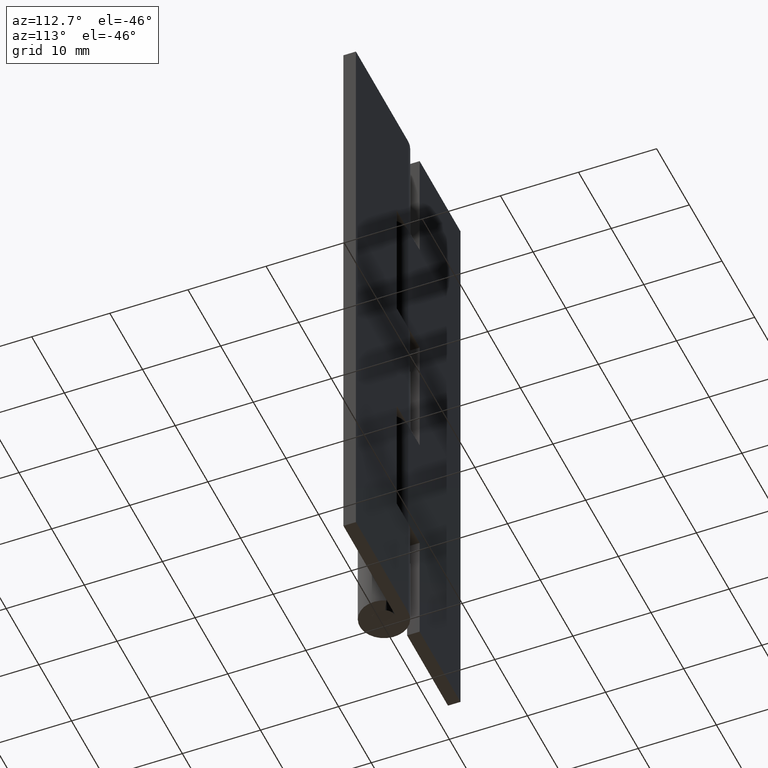
[diagram: clean part render]
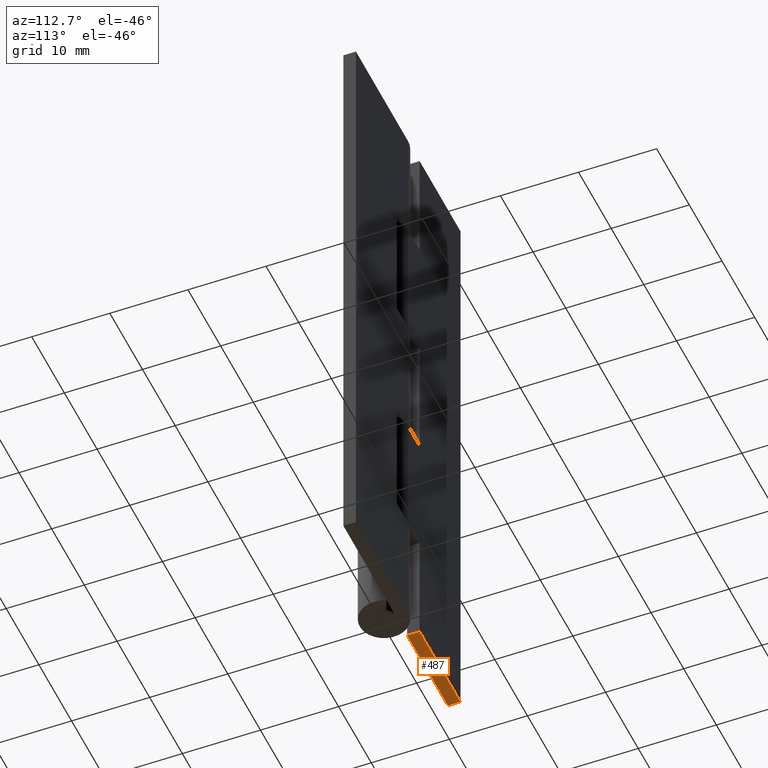
[diagram: same view with one face highlighted and labeled with its STEP entity id]
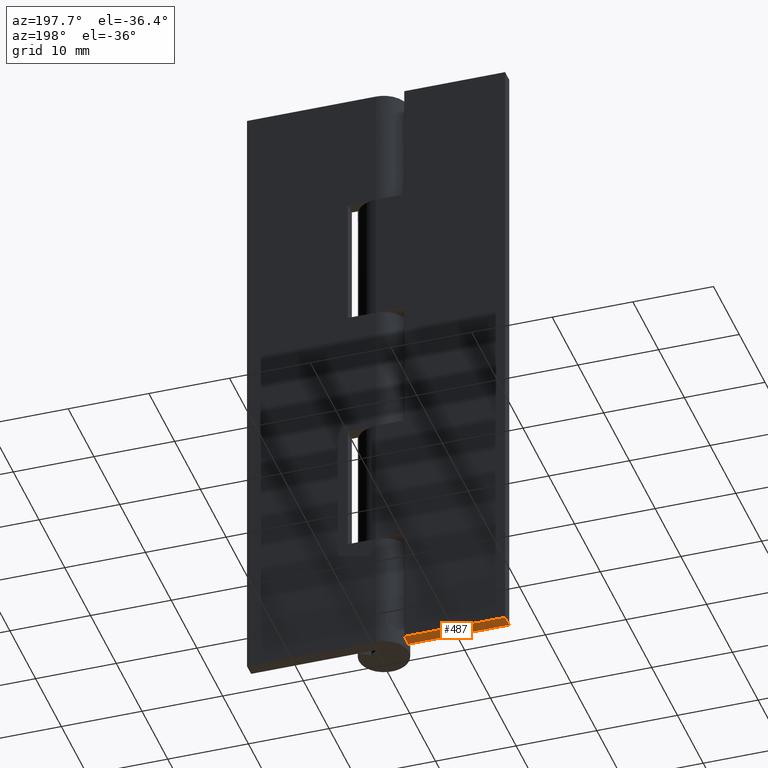
[diagram: same view with one face highlighted and labeled with its STEP entity id]
A machine part, auxiliary view. The second image highlights one B-rep face of the part: STEP entity #487.
A second angle (auxiliary view) of the same face is appended — the face is thin or edge-on in the first view.
In plain terms, the highlighted face is a freeform B-spline surface patch.
Its self-contained STEP definition (entity closure, byte-faithful):
#225=CARTESIAN_POINT('',(-3.500000000000100,1.500000000000000,0.0));
#226=VERTEX_POINT('',#225);
#227=CARTESIAN_POINT('',(-3.500000000000100,3.099998000000050,0.0));
#228=VERTEX_POINT('',#227);
#229=CARTESIAN_POINT('',(-3.500000000000100,1.500000000000000,0.0));
#230=CARTESIAN_POINT('',(-3.500000000000100,3.099998000000050,0.0));
#231=QUASI_UNIFORM_CURVE('',1,(#229,#230),.UNSPECIFIED.,.F.,.U.);
#232=EDGE_CURVE('',#226,#228,#231,.T.);
#460=CARTESIAN_POINT('',(-16.624374975772572,1.420080103001104,0.0));
#461=CARTESIAN_POINT('',(-2.875624688951403,1.420080103001104,0.0));
#462=CARTESIAN_POINT('',(-16.624374975772572,3.179917939914236,0.0));
#463=CARTESIAN_POINT('',(-2.875624688951403,3.179917939914236,0.0));
#464=B_SPLINE_SURFACE_WITH_KNOTS('',1,1,((#460,#462),(#461,#463)),.UNSPECIFIED.,.F.,.F.,.U.,(2,2),(2,2),(0.0,13.748750286821171),(0.041708334948495,0.958291687403247),.UNSPECIFIED.);
#465=ORIENTED_EDGE('',*,*,#232,.F.);
#466=CARTESIAN_POINT('',(-16.0,1.500000000000000,0.0));
#467=VERTEX_POINT('',#466);
#468=CARTESIAN_POINT('',(-3.500000000000100,1.500000000000000,0.0));
#469=CARTESIAN_POINT('',(-16.0,1.500000000000000,0.0));
#470=QUASI_UNIFORM_CURVE('',1,(#468,#469),.UNSPECIFIED.,.F.,.U.);
#471=EDGE_CURVE('',#226,#467,#470,.T.);
#472=ORIENTED_EDGE('',*,*,#471,.T.);
#473=CARTESIAN_POINT('',(-16.0,3.099998000000000,0.0));
#474=VERTEX_POINT('',#473);
#475=CARTESIAN_POINT('',(-16.0,1.500000000000000,0.0));
#476=CARTESIAN_POINT('',(-16.0,3.099998000000000,0.0));
#477=QUASI_UNIFORM_CURVE('',1,(#475,#476),.UNSPECIFIED.,.F.,.U.);
#478=EDGE_CURVE('',#467,#474,#477,.T.);
#479=ORIENTED_EDGE('',*,*,#478,.T.);
#480=CARTESIAN_POINT('',(-16.0,3.099998000000000,0.0));
#481=CARTESIAN_POINT('',(-3.500000000000100,3.099998000000050,0.0));
#482=QUASI_UNIFORM_CURVE('',1,(#480,#481),.UNSPECIFIED.,.F.,.U.);
#483=EDGE_CURVE('',#474,#228,#482,.T.);
#484=ORIENTED_EDGE('',*,*,#483,.T.);
#485=EDGE_LOOP('',(#465,#472,#479,#484));
#486=FACE_OUTER_BOUND('',#485,.T.);
#487=ADVANCED_FACE('',(#486),#464,.F.);